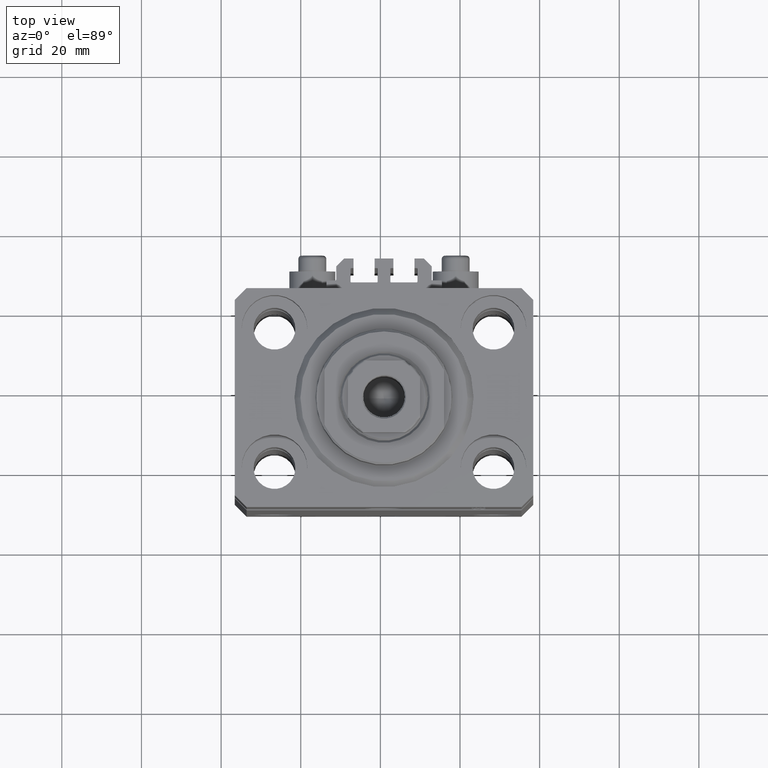
[diagram: clean part render]
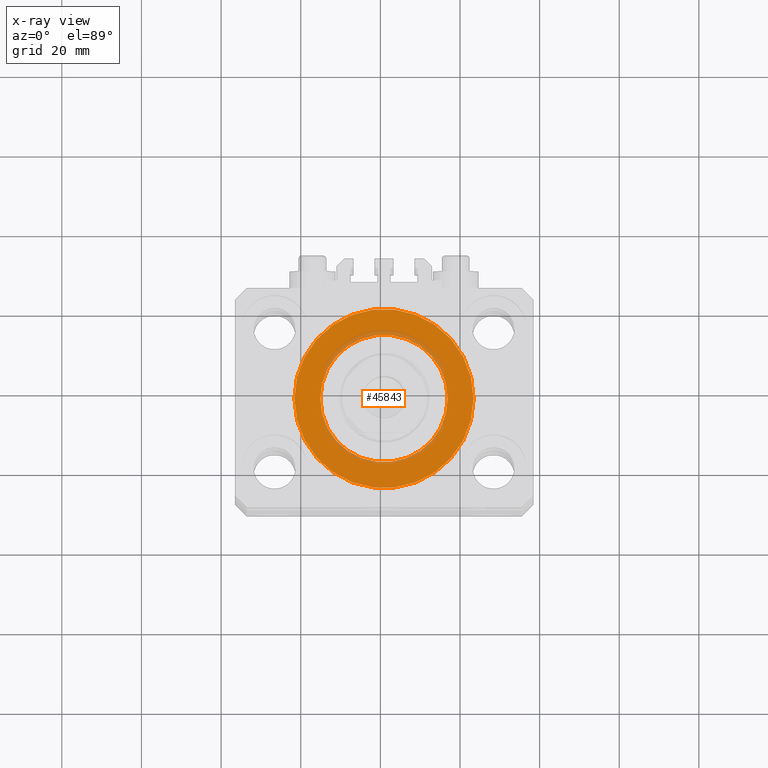
[diagram: x-ray — body ghosted, one internal face saturated and labeled with its STEP entity id]
A machine part, top view, then the same camera in x-ray: the body is ghosted and one INTERNAL B-rep face — a face not visible from any outside direction — is saturated and labeled: STEP entity #45843.
In plain terms, the highlighted planar face has unit normal (0, 0, 1).
Its self-contained STEP definition (entity closure, byte-faithful):
#2610 = DIRECTION ( 'NONE',  ( 0.000000000000000000, 0.000000000000000000, 1.000000000000000000 ) ) ;
#3293 = VERTEX_POINT ( 'NONE', #28874 ) ;
#4619 = ORIENTED_EDGE ( 'NONE', *, *, #39900, .F. ) ;
#6608 = DIRECTION ( 'NONE',  ( 1.000000000000000000, 0.000000000000000000, 0.000000000000000000 ) ) ;
#6955 = ORIENTED_EDGE ( 'NONE', *, *, #34817, .T. ) ;
#9640 = DIRECTION ( 'NONE',  ( 1.000000000000000000, 0.000000000000000000, 0.000000000000000000 ) ) ;
#10699 = VERTEX_POINT ( 'NONE', #35742 ) ;
#12495 = EDGE_CURVE ( 'NONE', #10699, #35706, #35363, .T. ) ;
#12684 = DIRECTION ( 'NONE',  ( 0.000000000000000000, 0.000000000000000000, 1.000000000000000000 ) ) ;
#13147 = CARTESIAN_POINT ( 'NONE',  ( 16.00000000000000000, 0.000000000000000000, -15.00000000000000000 ) ) ;
#13908 = CARTESIAN_POINT ( 'NONE',  ( 0.000000000000000000, 0.000000000000000000, -15.00000000000000000 ) ) ;
#16304 = VERTEX_POINT ( 'NONE', #13147 ) ;
#16325 = FACE_BOUND ( 'NONE', #26401, .T. ) ;
#17138 = ORIENTED_EDGE ( 'NONE', *, *, #27755, .F. ) ;
#17810 = CARTESIAN_POINT ( 'NONE',  ( 0.000000000000000000, 0.000000000000000000, -15.00000000000000000 ) ) ;
#20477 = ORIENTED_EDGE ( 'NONE', *, *, #12495, .T. ) ;
#21195 = DIRECTION ( 'NONE',  ( 0.000000000000000000, 0.000000000000000000, 1.000000000000000000 ) ) ;
#23552 = CIRCLE ( 'NONE', #30498, 22.50000000000000355 ) ;
#24169 = AXIS2_PLACEMENT_3D ( 'NONE', #17810, #21195, #25780 ) ;
#24548 = PLANE ( 'NONE',  #29200 ) ;
#25632 = DIRECTION ( 'NONE',  ( 0.000000000000000000, 0.000000000000000000, 1.000000000000000000 ) ) ;
#25709 = CIRCLE ( 'NONE', #24169, 16.00000000000000000 ) ;
#25780 = DIRECTION ( 'NONE',  ( 1.000000000000000000, 0.000000000000000000, 0.000000000000000000 ) ) ;
#26121 = CARTESIAN_POINT ( 'NONE',  ( -22.50000000000000355, 2.755455298081545172E-15, -15.00000000000000000 ) ) ;
#26401 = EDGE_LOOP ( 'NONE', ( #17138, #4619 ) ) ;
#27459 = DIRECTION ( 'NONE',  ( 1.000000000000000000, 0.000000000000000000, -0.000000000000000000 ) ) ;
#27755 = EDGE_CURVE ( 'NONE', #16304, #3293, #25709, .T. ) ;
#28784 = DIRECTION ( 'NONE',  ( 1.000000000000000000, 0.000000000000000000, 0.000000000000000000 ) ) ;
#28874 = CARTESIAN_POINT ( 'NONE',  ( -16.00000000000000000, 1.959434878635765131E-15, -15.00000000000000000 ) ) ;
#29200 = AXIS2_PLACEMENT_3D ( 'NONE', #31096, #12684, #27459 ) ;
#30498 = AXIS2_PLACEMENT_3D ( 'NONE', #44013, #25632, #28784 ) ;
#31096 = CARTESIAN_POINT ( 'NONE',  ( 0.000000000000000000, 0.000000000000000000, -15.00000000000000000 ) ) ;
#33753 = CIRCLE ( 'NONE', #43022, 16.00000000000000000 ) ;
#34817 = EDGE_CURVE ( 'NONE', #35706, #10699, #23552, .T. ) ;
#35363 = CIRCLE ( 'NONE', #47726, 22.50000000000000355 ) ;
#35706 = VERTEX_POINT ( 'NONE', #26121 ) ;
#35742 = CARTESIAN_POINT ( 'NONE',  ( 22.50000000000000355, 0.000000000000000000, -15.00000000000000000 ) ) ;
#39777 = DIRECTION ( 'NONE',  ( 0.000000000000000000, 0.000000000000000000, 1.000000000000000000 ) ) ;
#39900 = EDGE_CURVE ( 'NONE', #3293, #16304, #33753, .T. ) ;
#41944 = EDGE_LOOP ( 'NONE', ( #20477, #6955 ) ) ;
#42682 = FACE_OUTER_BOUND ( 'NONE', #41944, .T. ) ;
#43022 = AXIS2_PLACEMENT_3D ( 'NONE', #13908, #39777, #6608 ) ;
#44013 = CARTESIAN_POINT ( 'NONE',  ( 0.000000000000000000, 0.000000000000000000, -15.00000000000000000 ) ) ;
#45843 = ADVANCED_FACE ( 'NONE', ( #16325, #42682 ), #24548, .T. ) ;
#47180 = CARTESIAN_POINT ( 'NONE',  ( 0.000000000000000000, 0.000000000000000000, -15.00000000000000000 ) ) ;
#47726 = AXIS2_PLACEMENT_3D ( 'NONE', #47180, #2610, #9640 ) ;